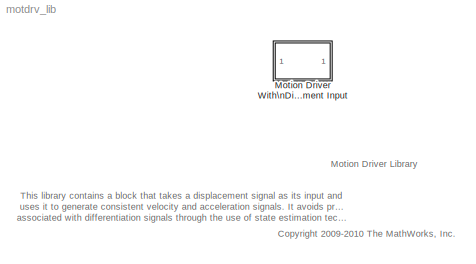
MODEL motdrv_lib
KIND library
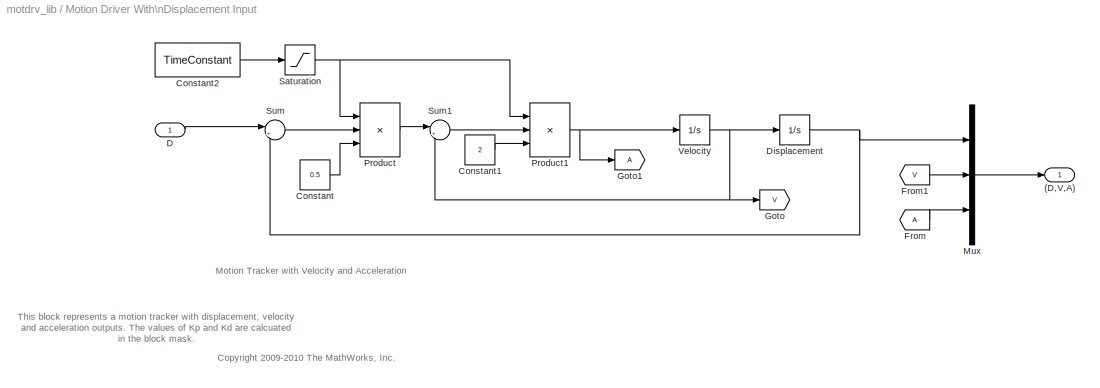
BLOCK [SubSystem] Motion Driver With\nDisplacement Input
  FunctionWithSeparateData = off
  MaskCallbackString = ||
  MaskDescription = This block takes as its input an acceleration and produces a three-dimensional output vector containing a displacement, a velocity and the original acceleration.  This is useful for driving SimMechanics actuators with motion.  To get correct performance, the user needs to specify the initial displacement and velocity signals.
  MaskDisplay = port_label('input', 1, 'D');\nport_label('output', 1, '(D,V,A)');
  MaskEnableString = on,on,on
  MaskHideContents = off
  MaskIconFrame = on
  MaskIconOpaque = on
  MaskIconRotate = none
  MaskIconUnits = autoscale
  MaskPortRotate = default
  MaskPromptString = Initial Displacement (units):|Initial Velocity (units/s):|Time Constant (s):
  MaskStyleString = edit,edit,edit
  MaskToolTipString = on,on,on
  MaskTunableValueString = off,off,on
  MaskType = Motion Driver with Acceleration Input
  MaskValueString = 0|0|1
  MaskVariables = InitialDisplacement=@1;InitialVelocity=@2;TimeConstant=@3;
  MaskVisibilityString = on,on,on
  MinAlgLoopOccurrences = off
  Opaque = off
  Ports = [1, 1]
  PropExecContextOutsideSubsystem = off
  RTWSystemCode = Auto
  RequestExecContextInheritance = off
  SID = 1
BLOCK [Outport] Motion Driver With\nDisplacement Input/(D,V,A)
  IconDisplay = Port number
  PortDimensions = 3
  SID = 18
BLOCK [Constant] Motion Driver With\nDisplacement Input/Constant
  OutDataType = fixdt(1, 16)
  OutScaling = 2^0
  SID = 3
  Value = 0.5
BLOCK [Constant] Motion Driver With\nDisplacement Input/Constant1
  OutDataType = fixdt(1, 16)
  OutScaling = 2^0
  SID = 4
  Value = 2
BLOCK [Constant] Motion Driver With\nDisplacement Input/Constant2
  OutDataType = fixdt(1, 16)
  OutScaling = 2^0
  SID = 5
  Value = TimeConstant
BLOCK [Inport] Motion Driver With\nDisplacement Input/D
  IconDisplay = Port number
  PortDimensions = 1
  SID = 2
BLOCK [Integrator] Motion Driver With\nDisplacement Input/Displacement
  InitialCondition = InitialDisplacement
  Ports = [1, 1]
  SID = 6
BLOCK [From] Motion Driver With\nDisplacement Input/From
  GotoTag = A
  SID = 7
BLOCK [From] Motion Driver With\nDisplacement Input/From1
  GotoTag = V
  SID = 8
BLOCK [Goto] Motion Driver With\nDisplacement Input/Goto
  GotoTag = V
  SID = 9
  TagVisibility = local
BLOCK [Goto] Motion Driver With\nDisplacement Input/Goto1
  GotoTag = A
  SID = 10
  TagVisibility = local
BLOCK [Mux] Motion Driver With\nDisplacement Input/Mux
  DisplayOption = bar
  Inputs = 3
  Ports = [3, 1]
  SID = 11
BLOCK [Product] Motion Driver With\nDisplacement Input/Product
  InputSameDT = off
  Inputs = /**
  OutDataType = fixdt(1, 16)
  OutDataTypeMode = Inherit via internal rule
  OutDataTypeStr = Inherit: Inherit via internal rule
  OutScaling = 2^0
  Ports = [3, 1]
  SID = 12
  SaturateOnIntegerOverflow = off
BLOCK [Product] Motion Driver With\nDisplacement Input/Product1
  InputSameDT = off
  Inputs = /**
  OutDataType = fixdt(1, 16)
  OutDataTypeMode = Inherit via internal rule
  OutDataTypeStr = Inherit: Inherit via internal rule
  OutScaling = 2^0
  Ports = [3, 1]
  SID = 13
  SaturateOnIntegerOverflow = off
BLOCK [Saturate] Motion Driver With\nDisplacement Input/Saturation
  AttributesFormatString = Upper Limit = %<UpperLimit>\\nLower Limit = %<LowerLimit>
  LowerLimit = eps
  OutDataType = fixdt(1, 16)
  OutScaling = 2^0
  Ports = [1, 1]
  SID = 14
  UpperLimit = Inf
BLOCK [Sum] Motion Driver With\nDisplacement Input/Sum
  IconShape = round
  InputSameDT = off
  Inputs = |+-
  OutDataType = fixdt(1, 16)
  OutDataTypeMode = Inherit via internal rule
  OutDataTypeStr = Inherit: Inherit via internal rule
  OutScaling = 2^0
  Ports = [2, 1]
  SID = 15
  SaturateOnIntegerOverflow = off
BLOCK [Sum] Motion Driver With\nDisplacement Input/Sum1
  IconShape = round
  InputSameDT = off
  Inputs = |+-
  OutDataType = fixdt(1, 16)
  OutDataTypeMode = Inherit via internal rule
  OutDataTypeStr = Inherit: Inherit via internal rule
  OutScaling = 2^0
  Ports = [2, 1]
  SID = 16
  SaturateOnIntegerOverflow = off
BLOCK [Integrator] Motion Driver With\nDisplacement Input/Velocity
  InitialCondition = InitialVelocity
  Ports = [1, 1]
  SID = 17
ANNOTATION (root): <copyright redacted>
ANNOTATION (root): Motion Driver Library
ANNOTATION (root): This library contains a block that takes a displacement signal as its input and\nuses it to generate consistent velocity and acceleration signals. It avoids problems\nassociated with differentiation signals through the use of state estimation techniques.
ANNOTATION Motion Driver With\nDisplacement Input: <copyright redacted>
ANNOTATION Motion Driver With\nDisplacement Input: Motion Tracker with Velocity and Acceleration
ANNOTATION Motion Driver With\nDisplacement Input: This block represents a motion tracker with displacement, velocity\nand acceleration outputs. The values of Kp and Kd are calcuated\nin the block mask.
LINE Motion Driver With\nDisplacement Input/Constant1:1 -> Motion Driver With\nDisplacement Input/Product1:3
LINE Motion Driver With\nDisplacement Input/Constant2:1 -> Motion Driver With\nDisplacement Input/Saturation:1
LINE Motion Driver With\nDisplacement Input/Constant:1 -> Motion Driver With\nDisplacement Input/Product:3
LINE Motion Driver With\nDisplacement Input/D:1 -> Motion Driver With\nDisplacement Input/Sum:1
NET Motion Driver With\nDisplacement Input/Displacement:1 -> Motion Driver With\nDisplacement Input/Mux:1, Motion Driver With\nDisplacement Input/Sum:2
LINE Motion Driver With\nDisplacement Input/From1:1 -> Motion Driver With\nDisplacement Input/Mux:2
LINE Motion Driver With\nDisplacement Input/From:1 -> Motion Driver With\nDisplacement Input/Mux:3
LINE Motion Driver With\nDisplacement Input/Mux:1 -> Motion Driver With\nDisplacement Input/(D,V,A):1
NET Motion Driver With\nDisplacement Input/Product1:1 -> Motion Driver With\nDisplacement Input/Goto1:1, Motion Driver With\nDisplacement Input/Velocity:1
LINE Motion Driver With\nDisplacement Input/Product:1 -> Motion Driver With\nDisplacement Input/Sum1:1
NET Motion Driver With\nDisplacement Input/Saturation:1 -> Motion Driver With\nDisplacement Input/Product1:1, Motion Driver With\nDisplacement Input/Product:1
LINE Motion Driver With\nDisplacement Input/Sum1:1 -> Motion Driver With\nDisplacement Input/Product1:2
LINE Motion Driver With\nDisplacement Input/Sum:1 -> Motion Driver With\nDisplacement Input/Product:2
NET Motion Driver With\nDisplacement Input/Velocity:1 -> Motion Driver With\nDisplacement Input/Displacement:1, Motion Driver With\nDisplacement Input/Goto:1, Motion Driver With\nDisplacement Input/Sum1:2
note: NET lines group one-source signal fan-out (src -> all destinations, sorted); 1:1 wires keep LINE
